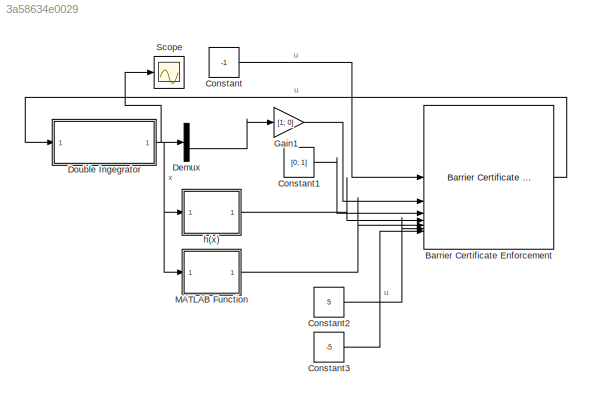
MODEL slx_3a58634e0029
KIND model
CONFIG AbsTol = auto
CONFIG EnableMultiTasking = off
CONFIG FixedStep = auto
CONFIG MaxStep = auto
CONFIG MinStep = auto
CONFIG RelTol = 1e-3
CONFIG SampleTimeConstraint = Unconstrained
CONFIG SolverName = VariableStepAuto
CONFIG StartTime = 0.0
CONFIG StopTime = Tf
BLOCK [Reference] Barrier Certificate Enforcement  REF=slctrl_constraint/Barrier Certificate Enforcement
  LibrarySourceBlock = slctrlblks/Constraint Control/Barrier Certificate Enforcement
  SourceBlock = slctrl_constraint/Barrier Certificate Enforcement
  SourceType = Barrier Certificate Enforcement
BLOCK [Constant] Constant
  Value = -1
BLOCK [Constant] Constant1
  Value = [0; 1]
BLOCK [Constant] Constant2
  Value = 5
BLOCK [Constant] Constant3
  Value = -5
BLOCK [Demux] Demux
  Outputs = 2
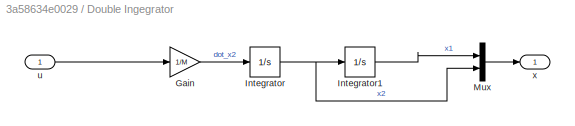
BLOCK [SubSystem] Double Ingegrator
BLOCK [Gain] Double Ingegrator/Gain
  Gain = 1/M
BLOCK [Integrator] Double Ingegrator/Integrator
  InitialCondition = x2_0
BLOCK [Integrator] Double Ingegrator/Integrator1
  InitialCondition = x1_0
BLOCK [Mux] Double Ingegrator/Mux
  DisplayOption = bar
  Inputs = 2
BLOCK [Inport] Double Ingegrator/u
BLOCK [Outport] Double Ingegrator/x
BLOCK [Gain] Gain1
  Gain = [1; 0]
  Multiplication = Matrix(K*u)
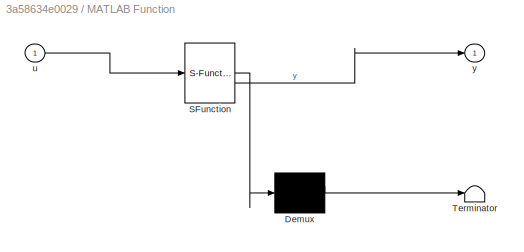
BLOCK [SubSystem] MATLAB Function
  ErrorFcn = Stateflow.Translate.translate
  PermitHierarchicalResolution = ExplicitOnly
  SFBlockType = MATLAB Function
  TreatAsAtomicUnit = on
BLOCK [Demux] MATLAB Function/ Demux 
  Outputs = 1
BLOCK [S-Function] MATLAB Function/ SFunction 
  EnableBusSupport = on
  FunctionName = sf_sfun
  PortCounts = [1 2]
  SFcnIsStateOwnerBlock = off
  SFunctionDeploymentMode = off
  Tag = Stateflow S-Function 1
BLOCK [Terminator] MATLAB Function/ Terminator 
BLOCK [Inport] MATLAB Function/u
BLOCK [Outport] MATLAB Function/y
BLOCK [Scope] Scope
  Floating = off
  NumInputPorts = 1
  ScopeSpecificationString = Simulink.scopes.TimeScopeBlockCfg('CurrentConfiguration', extmgr.ConfigurationSet(extmgr.Configuration('Core','General UI',true),extmgr.Configuration('Core','Source UI',true),extmgr.Configuration('Sources','WiredSimulink',true),extmgr.Configuration('Visuals','Time Domain',true,'SerializedDisplays',{struct('MinYLimReal','-1.47356','MaxYLimReal','0.90164','YLabelReal','','MinYLimMag','0.00000','MaxY...<+1467ch>
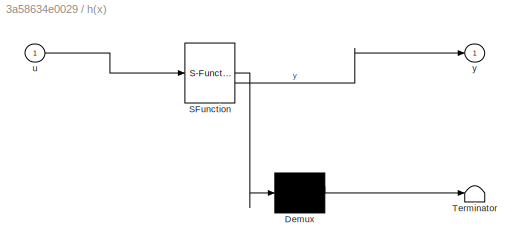
BLOCK [SubSystem] h(x)
  ErrorFcn = Stateflow.Translate.translate
  PermitHierarchicalResolution = ExplicitOnly
  SFBlockType = MATLAB Function
  TreatAsAtomicUnit = on
BLOCK [Demux] h(x)/ Demux 
  Outputs = 1
BLOCK [S-Function] h(x)/ SFunction 
  EnableBusSupport = on
  FunctionName = sf_sfun
  PortCounts = [1 2]
  SFcnIsStateOwnerBlock = off
  SFunctionDeploymentMode = off
  Tag = Stateflow S-Function 2
BLOCK [Terminator] h(x)/ Terminator 
BLOCK [Inport] h(x)/u
BLOCK [Outport] h(x)/y
LINE Barrier Certificate Enforcement:1 -> Double Ingegrator:1
LINE Constant1:1 -> Barrier Certificate Enforcement:3
LINE Constant2:1 -> Barrier Certificate Enforcement:6
LINE Constant3:1 -> Barrier Certificate Enforcement:7
LINE Constant:1 -> Barrier Certificate Enforcement:1
LINE Demux:2 -> Gain1:1
LINE Double Ingegrator/Gain:1 -> Double Ingegrator/Integrator:1
LINE Double Ingegrator/Integrator1:1 -> Double Ingegrator/Mux:1
NET Double Ingegrator/Integrator:1 -> Double Ingegrator/Integrator1:1, Double Ingegrator/Mux:2
LINE Double Ingegrator/Mux:1 -> Double Ingegrator/x:1
LINE Double Ingegrator/u:1 -> Double Ingegrator/Gain:1
NET Double Ingegrator:1 -> Demux:1, MATLAB Function:1, Scope:1, h(x):1
LINE Gain1:1 -> Barrier Certificate Enforcement:2
LINE MATLAB Function:1 -> Barrier Certificate Enforcement:5
LINE h(x):1 -> Barrier Certificate Enforcement:4
note: NET lines group one-source signal fan-out (src -> all destinations, sorted); 1:1 wires keep LINE
CHART h(x) states=1 transitions=1
  STATE_LABEL 'eML_blk_kernel()'
  STATE_LABEL 'SCRIPT:\nfunction y = h(u)\n\n    x1 = u(1);\n    x2 = u(2);\n\n    P_M = 1;\n    P_m = -1;\n    V_M = 1;\n    V_m = -1;\n    u_M = 5;\n    u_m = -5;\n\n    if x2 > 0\n        h1 = P_M - x1 + x2^2/(2*u_m);\n        h2 = x1 - P_m;\n    else\n        h1 = P_M - x1;\n        h2 = x1 - P_m - x2^2/(2*u_M);\n    end\n\n    h3 = V_M - x2;\n    h4 = x2 - V_m;\n\ny = [h1; h2; h3; h4];\n'
CHART MATLAB Function states=1 transitions=1
  STATE_LABEL 'eML_blk_kernel()'
  STATE_LABEL 'SCRIPT:\nfunction y = q(u)\n    \nx1 = u(1);\nx2 = u(2);\n\nu_M = 5;\nu_m = -5;\n\nif x2 > 0\n    q = [-1 x2/u_m; 1 0; 0 -1; 0 1];\nelse\n    q = [-1 0; 1 -x2/u_M; 0 -1; 0 1];\nend\n\ny = q;\n'
CHART  states=0 transitions=0
CHART  states=0 transitions=0
